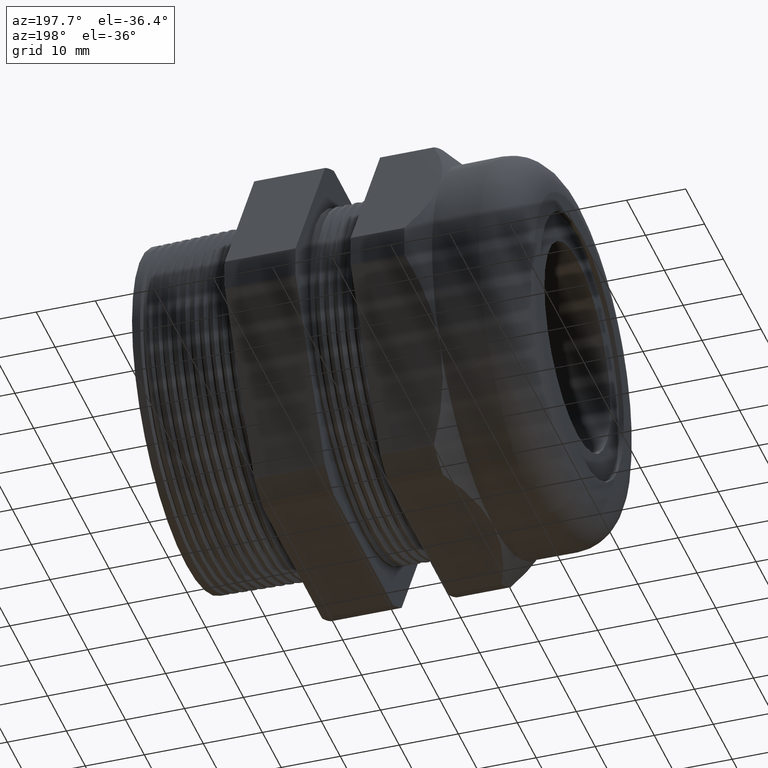
[diagram: clean part render]
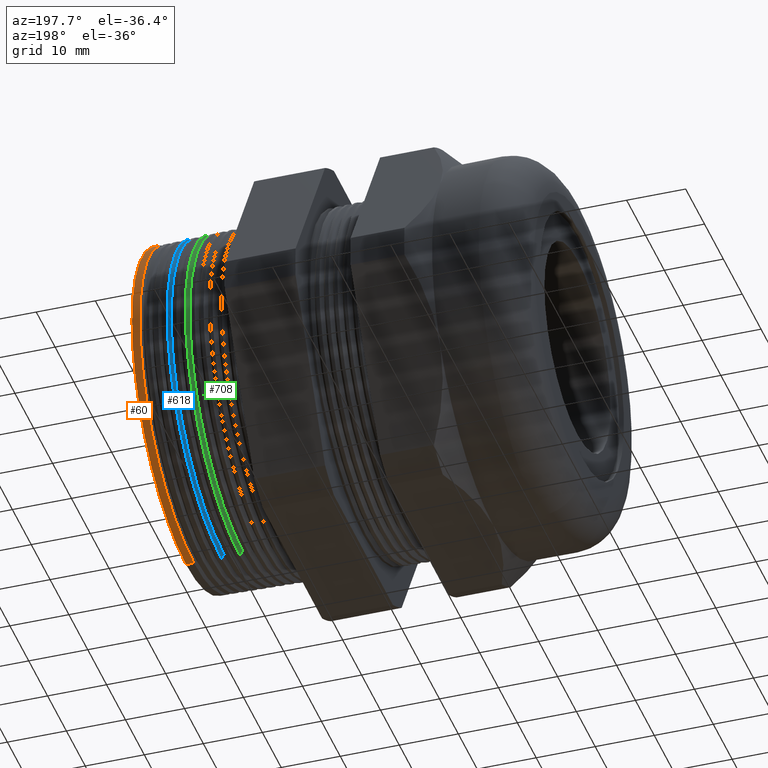
[diagram: same view with three faces highlighted in distinct colors, each labeled with its STEP entity id]
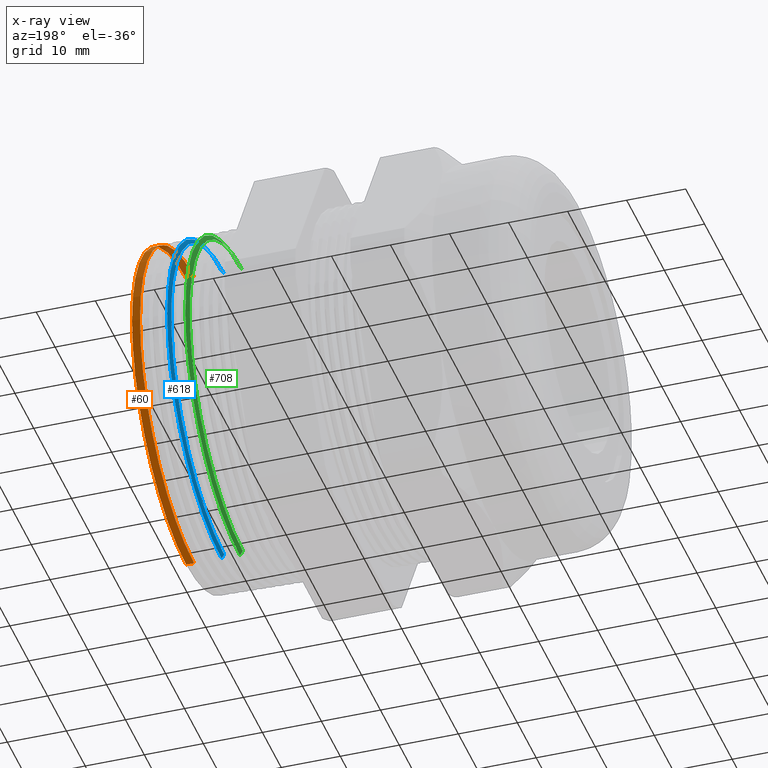
[diagram: x-ray of the same camera — body ghosted, the three highlighted faces saturated]
A machine part, auxiliary view with three faces highlighted in distinct colors.
The next image is the same camera in x-ray (body ghosted, the three faces saturated) — at least one of them is partly hidden behind the body in this view.
Their STEP definitions:

[orange] entity #60 — the highlighted conical surface has half-angle 1.5 deg.
#49 = VERTEX_POINT ( 'NONE', #1635 ) ;
#50 = EDGE_CURVE ( 'NONE', #55, #1639, #1622, .T. ) ;
#51 = ORIENTED_EDGE ( 'NONE', *, *, #1052, .F. ) ;
#52 = EDGE_CURVE ( 'NONE', #49, #1050, #1618, .T. ) ;
#54 = ORIENTED_EDGE ( 'NONE', *, *, #56, .F. ) ;
#55 = VERTEX_POINT ( 'NONE', #1673 ) ;
#56 = EDGE_CURVE ( 'NONE', #55, #49, #1672, .T. ) ;
#57 = ORIENTED_EDGE ( 'NONE', *, *, #52, .F. ) ;
#58 = ORIENTED_EDGE ( 'NONE', *, *, #50, .T. ) ;
#60 = ADVANCED_FACE ( 'NONE', ( #1667 ), #1666, .T. ) ;
#67 = EDGE_LOOP ( 'NONE', ( #54, #58, #51, #57 ) ) ;
#1050 = VERTEX_POINT ( 'NONE', #3590 ) ;
#1052 = EDGE_CURVE ( 'NONE', #1050, #1639, #3589, .T. ) ;
#1615 = DIRECTION ( 'NONE',  ( -0.9996573249755573700, 0.0000000000000000000, 0.02617694830786633500 ) ) ;
#1616 = VECTOR ( 'NONE', #1615, 39.37007874015748100 ) ;
#1617 = CARTESIAN_POINT ( 'NONE',  ( 0.3999999999999999700, 0.0000000000000000000, 1.129426223824634400 ) ) ;
#1618 = LINE ( 'NONE', #1617, #1616 ) ;
#1619 = DIRECTION ( 'NONE',  ( -0.9996573249755573700, 3.205751595667422300E-018, -0.02617694830786633500 ) ) ;
#1620 = VECTOR ( 'NONE', #1619, 39.37007874015748100 ) ;
#1621 = CARTESIAN_POINT ( 'NONE',  ( 0.3999999999999999700, 1.383148209879920500E-016, -1.129426223824634400 ) ) ;
#1622 = LINE ( 'NONE', #1621, #1620 ) ;
#1635 = CARTESIAN_POINT ( 'NONE',  ( 0.3999999999999999700, 0.0000000000000000000, 1.129426223824634400 ) ) ;
#1639 = VERTEX_POINT ( 'NONE', #4255 ) ;
#1661 = DIRECTION ( 'NONE',  ( 0.0000000000000000000, 0.0000000000000000000, 1.000000000000000000 ) ) ;
#1662 = DIRECTION ( 'NONE',  ( -1.000000000000000000, 0.0000000000000000000, 0.0000000000000000000 ) ) ;
#1663 = CARTESIAN_POINT ( 'NONE',  ( 0.3999999999999999700, 0.0000000000000000000, 0.0000000000000000000 ) ) ;
#1664 = AXIS2_PLACEMENT_3D ( 'NONE', #1663, #1662, #1661 ) ;
#1666 = CONICAL_SURFACE ( 'NONE', #1664, 1.129426223824634400, 0.02617993877990812100 ) ;
#1667 = FACE_OUTER_BOUND ( 'NONE', #67, .T. ) ;
#1668 = DIRECTION ( 'NONE',  ( 0.0000000000000000000, 0.0000000000000000000, -1.000000000000000000 ) ) ;
#1669 = DIRECTION ( 'NONE',  ( 1.000000000000000000, 0.0000000000000000000, 0.0000000000000000000 ) ) ;
#1670 = CARTESIAN_POINT ( 'NONE',  ( 0.3999999999999999700, 0.0000000000000000000, 0.0000000000000000000 ) ) ;
#1671 = AXIS2_PLACEMENT_3D ( 'NONE', #1670, #1669, #1668 ) ;
#1672 = CIRCLE ( 'NONE', #1671, 1.129426223824634400 ) ;
#1673 = CARTESIAN_POINT ( 'NONE',  ( 0.3999999999999999700, 1.384007961136128000E-016, -1.129426223824634400 ) ) ;
#3585 = DIRECTION ( 'NONE',  ( 0.0000000000000000000, 0.0000000000000000000, -1.000000000000000000 ) ) ;
#3586 = DIRECTION ( 'NONE',  ( -1.000000000000000000, 0.0000000000000000000, 0.0000000000000000000 ) ) ;
#3587 = CARTESIAN_POINT ( 'NONE',  ( 0.3463803345158686900, 0.0000000000000000000, 0.0000000000000000000 ) ) ;
#3588 = AXIS2_PLACEMENT_3D ( 'NONE', #3587, #3586, #3585 ) ;
#3589 = CIRCLE ( 'NONE', #3588, 1.130830304179567300 ) ;
#3590 = CARTESIAN_POINT ( 'NONE',  ( 0.3463803345158686900, 0.0000000000000000000, 1.130830304179567500 ) ) ;
#4255 = CARTESIAN_POINT ( 'NONE',  ( 0.3463803345158686900, 1.384867712392335000E-016, -1.130830304179567500 ) ) ;

[blue] entity #618 — the highlighted conical surface has half-angle 58.5 deg.
#618 = ADVANCED_FACE ( 'NONE', ( #2724 ), #2722, .T. ) ;
#619 = EDGE_LOOP ( 'NONE', ( #620, #624, #682, #685 ) ) ;
#620 = ORIENTED_EDGE ( 'NONE', *, *, #621, .T. ) ;
#621 = EDGE_CURVE ( 'NONE', #622, #623, #2717, .T. ) ;
#622 = VERTEX_POINT ( 'NONE', #2713 ) ;
#623 = VERTEX_POINT ( 'NONE', #2779 ) ;
#624 = ORIENTED_EDGE ( 'NONE', *, *, #625, .T. ) ;
#625 = EDGE_CURVE ( 'NONE', #623, #626, #2778, .T. ) ;
#626 = VERTEX_POINT ( 'NONE', #2774 ) ;
#682 = ORIENTED_EDGE ( 'NONE', *, *, #683, .T. ) ;
#683 = EDGE_CURVE ( 'NONE', #626, #684, #2853, .T. ) ;
#684 = VERTEX_POINT ( 'NONE', #2848 ) ;
#685 = ORIENTED_EDGE ( 'NONE', *, *, #686, .F. ) ;
#686 = EDGE_CURVE ( 'NONE', #622, #684, #2846, .T. ) ;
#2713 = CARTESIAN_POINT ( 'NONE',  ( 0.1460390190945653200, 1.374002904965588500E-016, -1.107427404413645600 ) ) ;
#2714 = DIRECTION ( 'NONE',  ( 0.0000000000000000000, 0.0000000000000000000, -1.000000000000000000 ) ) ;
#2715 = DIRECTION ( 'NONE',  ( 1.000000000000000000, 0.0000000000000000000, 0.0000000000000000000 ) ) ;
#2716 = AXIS2_PLACEMENT_3D ( 'NONE', #2723, #2715, #2714 ) ;
#2717 = CIRCLE ( 'NONE', #2716, 1.107427404413645600 ) ;
#2718 = DIRECTION ( 'NONE',  ( 0.0000000000000000000, 0.0000000000000000000, -1.000000000000000000 ) ) ;
#2719 = DIRECTION ( 'NONE',  ( 1.000000000000000000, 0.0000000000000000000, 0.0000000000000000000 ) ) ;
#2720 = CARTESIAN_POINT ( 'NONE',  ( 0.1460390190945653200, 0.0000000000000000000, 0.0000000000000000000 ) ) ;
#2721 = AXIS2_PLACEMENT_3D ( 'NONE', #2720, #2719, #2718 ) ;
#2722 = CONICAL_SURFACE ( 'NONE', #2721, 1.107427404413645600, 1.021017612416684500 ) ;
#2723 = CARTESIAN_POINT ( 'NONE',  ( 0.1460390190945653200, 0.0000000000000000000, 0.0000000000000000000 ) ) ;
#2724 = FACE_OUTER_BOUND ( 'NONE', #619, .T. ) ;
#2774 = CARTESIAN_POINT ( 'NONE',  ( 0.1633178923772483100, 0.0000000000000000000, 1.135623962931672000 ) ) ;
#2775 = DIRECTION ( 'NONE',  ( 0.5224985647159473600, 1.044183048100713300E-016, 0.8526401643540930700 ) ) ;
#2776 = VECTOR ( 'NONE', #2775, 39.37007874015748100 ) ;
#2777 = CARTESIAN_POINT ( 'NONE',  ( 0.1460390190945653200, 1.356207426103232500E-016, 1.107427404413645600 ) ) ;
#2778 = LINE ( 'NONE', #2777, #2776 ) ;
#2779 = CARTESIAN_POINT ( 'NONE',  ( 0.1460390190945653200, 0.0000000000000000000, 1.107427404413645600 ) ) ;
#2843 = DIRECTION ( 'NONE',  ( 0.5224985647159473600, 0.0000000000000000000, -0.8526401643540930700 ) ) ;
#2844 = VECTOR ( 'NONE', #2843, 39.37007874015748100 ) ;
#2845 = CARTESIAN_POINT ( 'NONE',  ( 0.1460390190945653200, 0.0000000000000000000, -1.107427404413645600 ) ) ;
#2846 = LINE ( 'NONE', #2845, #2844 ) ;
#2848 = CARTESIAN_POINT ( 'NONE',  ( 0.1633178923772483100, 1.390738251239304300E-016, -1.135623962931672000 ) ) ;
#2849 = DIRECTION ( 'NONE',  ( 0.0000000000000000000, 0.0000000000000000000, -1.000000000000000000 ) ) ;
#2850 = DIRECTION ( 'NONE',  ( -1.000000000000000000, 0.0000000000000000000, 0.0000000000000000000 ) ) ;
#2851 = CARTESIAN_POINT ( 'NONE',  ( 0.1633178923772483100, 0.0000000000000000000, 0.0000000000000000000 ) ) ;
#2852 = AXIS2_PLACEMENT_3D ( 'NONE', #2851, #2850, #2849 ) ;
#2853 = CIRCLE ( 'NONE', #2852, 1.135623962931672000 ) ;

[green] entity #708 — the highlighted conical surface has half-angle 58.5 deg.
#708 = ADVANCED_FACE ( 'NONE', ( #2922 ), #2921, .T. ) ;
#709 = EDGE_LOOP ( 'NONE', ( #710, #714, #717, #720 ) ) ;
#710 = ORIENTED_EDGE ( 'NONE', *, *, #711, .T. ) ;
#711 = EDGE_CURVE ( 'NONE', #712, #713, #2915, .T. ) ;
#712 = VERTEX_POINT ( 'NONE', #2911 ) ;
#713 = VERTEX_POINT ( 'NONE', #2910 ) ;
#714 = ORIENTED_EDGE ( 'NONE', *, *, #715, .T. ) ;
#715 = EDGE_CURVE ( 'NONE', #713, #716, #2909, .T. ) ;
#716 = VERTEX_POINT ( 'NONE', #2905 ) ;
#717 = ORIENTED_EDGE ( 'NONE', *, *, #718, .T. ) ;
#718 = EDGE_CURVE ( 'NONE', #716, #719, #2967, .T. ) ;
#719 = VERTEX_POINT ( 'NONE', #2962 ) ;
#720 = ORIENTED_EDGE ( 'NONE', *, *, #721, .F. ) ;
#721 = EDGE_CURVE ( 'NONE', #712, #719, #2961, .T. ) ;
#2905 = CARTESIAN_POINT ( 'NONE',  ( 0.04127626428482016700, 0.0000000000000000000, 1.138819735433075400 ) ) ;
#2906 = DIRECTION ( 'NONE',  ( 0.5224985647159473600, 1.044183048100713300E-016, 0.8526401643540930700 ) ) ;
#2907 = VECTOR ( 'NONE', #2906, 39.37007874015748100 ) ;
#2908 = CARTESIAN_POINT ( 'NONE',  ( 0.02203901909456528300, 1.356207426103232500E-016, 1.107427404413645600 ) ) ;
#2909 = LINE ( 'NONE', #2908, #2907 ) ;
#2910 = CARTESIAN_POINT ( 'NONE',  ( 0.02203901909456528300, 0.0000000000000000000, 1.107427404413645600 ) ) ;
#2911 = CARTESIAN_POINT ( 'NONE',  ( 0.02203901909456528300, 1.376019828483444800E-016, -1.107427404413645600 ) ) ;
#2912 = DIRECTION ( 'NONE',  ( 0.0000000000000000000, 0.0000000000000000000, -1.000000000000000000 ) ) ;
#2913 = DIRECTION ( 'NONE',  ( 1.000000000000000000, 0.0000000000000000000, 0.0000000000000000000 ) ) ;
#2914 = AXIS2_PLACEMENT_3D ( 'NONE', #2920, #2913, #2912 ) ;
#2915 = CIRCLE ( 'NONE', #2914, 1.107427404413645600 ) ;
#2916 = DIRECTION ( 'NONE',  ( 0.0000000000000000000, 0.0000000000000000000, -1.000000000000000000 ) ) ;
#2917 = DIRECTION ( 'NONE',  ( 1.000000000000000000, 0.0000000000000000000, 0.0000000000000000000 ) ) ;
#2918 = CARTESIAN_POINT ( 'NONE',  ( 0.02203901909456528300, 0.0000000000000000000, 0.0000000000000000000 ) ) ;
#2919 = AXIS2_PLACEMENT_3D ( 'NONE', #2918, #2917, #2916 ) ;
#2920 = CARTESIAN_POINT ( 'NONE',  ( 0.02203901909456528300, 0.0000000000000000000, 0.0000000000000000000 ) ) ;
#2921 = CONICAL_SURFACE ( 'NONE', #2919, 1.107427404413645600, 1.021017612416684500 ) ;
#2922 = FACE_OUTER_BOUND ( 'NONE', #709, .T. ) ;
#2958 = DIRECTION ( 'NONE',  ( 0.5224985647159473600, 0.0000000000000000000, -0.8526401643540930700 ) ) ;
#2959 = VECTOR ( 'NONE', #2958, 39.37007874015748100 ) ;
#2960 = CARTESIAN_POINT ( 'NONE',  ( 0.02203901909456528300, 0.0000000000000000000, -1.107427404413645600 ) ) ;
#2961 = LINE ( 'NONE', #2960, #2959 ) ;
#2962 = CARTESIAN_POINT ( 'NONE',  ( 0.04127626428482016700, 1.394651943803951200E-016, -1.138819735433075400 ) ) ;
#2963 = DIRECTION ( 'NONE',  ( 0.0000000000000000000, 0.0000000000000000000, -1.000000000000000000 ) ) ;
#2964 = DIRECTION ( 'NONE',  ( -1.000000000000000000, 0.0000000000000000000, 0.0000000000000000000 ) ) ;
#2965 = CARTESIAN_POINT ( 'NONE',  ( 0.04127626428482016700, 0.0000000000000000000, 0.0000000000000000000 ) ) ;
#2966 = AXIS2_PLACEMENT_3D ( 'NONE', #2965, #2964, #2963 ) ;
#2967 = CIRCLE ( 'NONE', #2966, 1.138819735433075400 ) ;